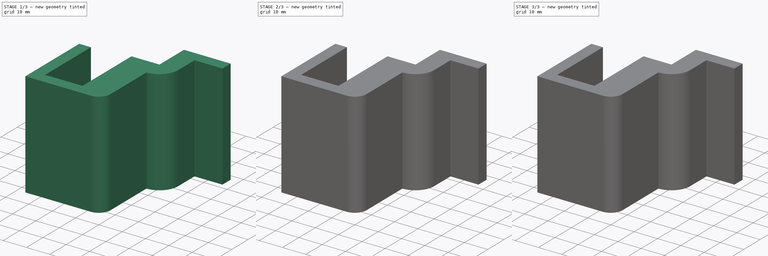
[diagram: build sequence overview — one tinted view per stage of 3, left to right]
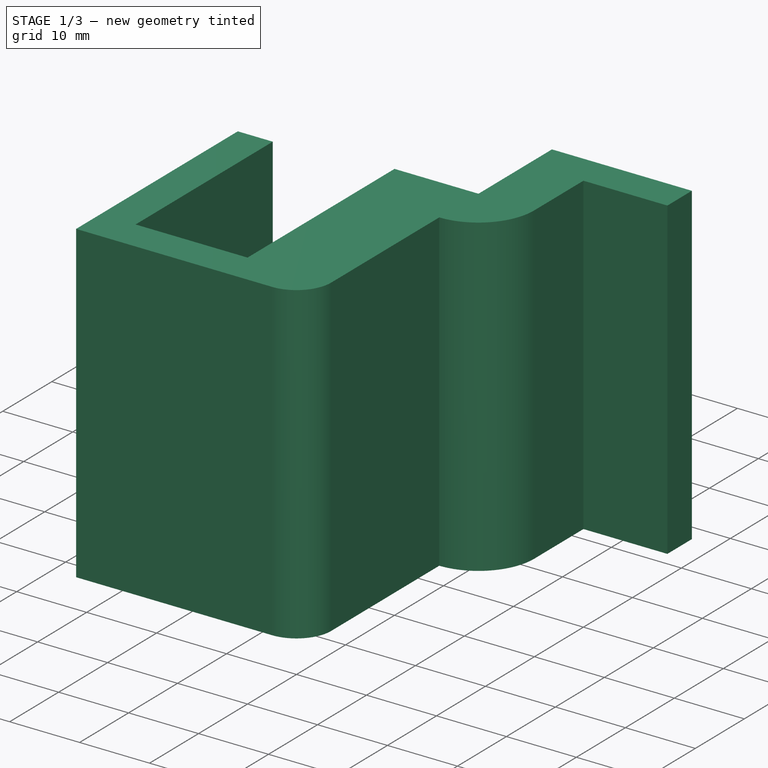
[diagram: stage 1 of 3 — iso view after this stage's code; geometry added in this stage tinted green]
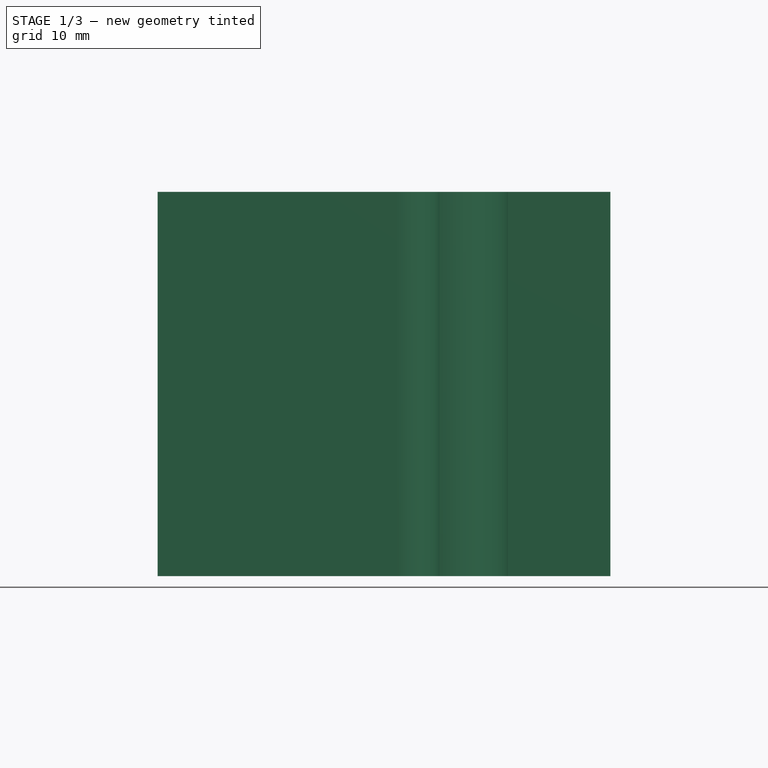
[diagram: stage 1 of 3 — front view after this stage's code; geometry added in this stage tinted green]
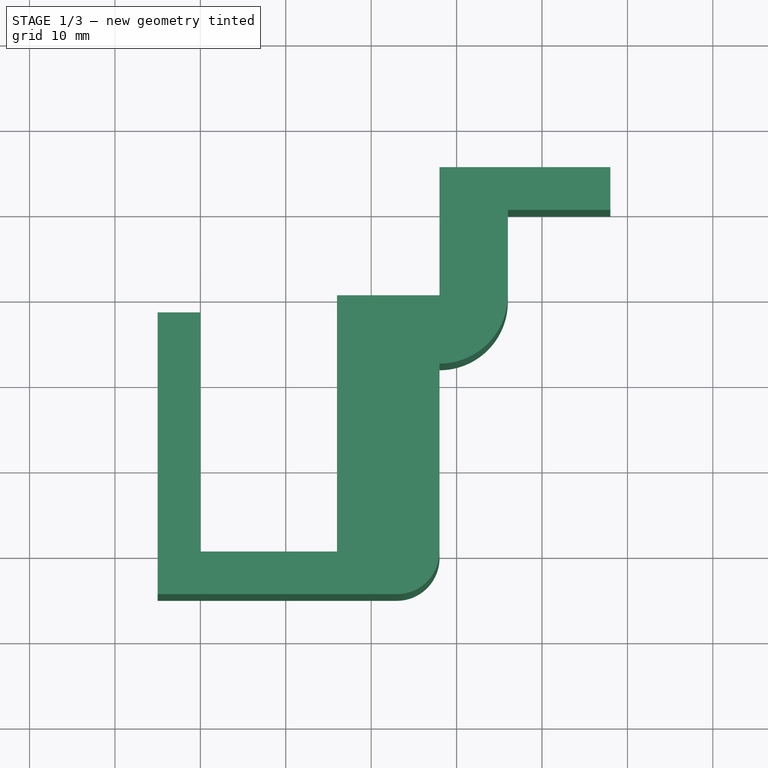
[diagram: stage 1 of 3 — top view after this stage's code; geometry added in this stage tinted green]
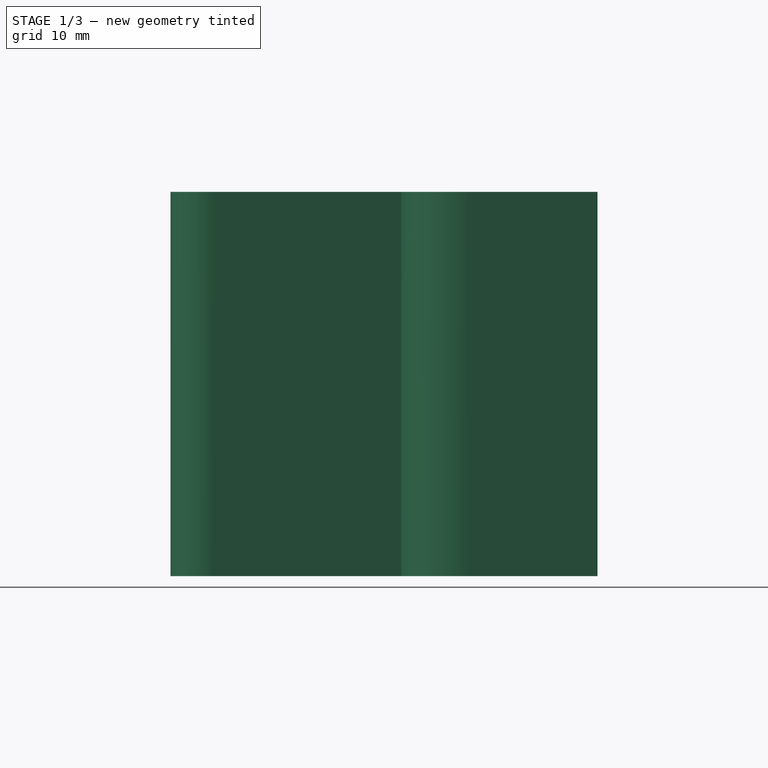
[diagram: stage 1 of 3 — right view after this stage's code; geometry added in this stage tinted green]
FCSTD DOCUMENT  (FreeCAD 0.20R29177 (Git))
Label: tableSupport
License: All rights reserved
LicenseURL: http://en.wikipedia.org/wiki/All_rights_reserved
objects: Sketcher::SketchObject×5, PartDesign::Pocket×3, PartDesign::Body×2, Spreadsheet::Sheet×1, PartDesign::Pad×1, PartDesign::FeatureBase×1, PartDesign::SubtractiveHelix×1
note: 18 computed .brp shape members not serialized (recipe doc carries the construction recipe); baked Part::Feature solids carry a one-line shape summary decoded from their .brp

FEATURE [Sketcher::SketchObject] Sketch
  FullyConstrained = true
  MapMode = 5
  Support = -> [XY_Plane]
  expr: Constraints[10] = Spreadsheet.toTableEdgeDist
  expr: Constraints[11] = Spreadsheet.tableSupportHeight
  expr: Constraints[16] = Spreadsheet.bottomThickness
  expr: Constraints[26] = Spreadsheet.supportXSmall
  expr: Constraints[36] = Spreadsheet.supportX
  expr: Constraints[38] = Spreadsheet.topThickness
  expr: Constraints[39] = Spreadsheet.topHolderWidth
  expr: Constraints[40] = Spreadsheet.tableSupportHeight - Spreadsheet.topThickness
  expr: Constraints[42] = Spreadsheet.bottomThickness
  expr: Constraints[43] = Spreadsheet.bottomThickness
  expr: Constraints[8] = Spreadsheet.bottomHolderWidth
  expr: Constraints[9] = Spreadsheet.bottomBarHeight
  sketch-geometry (16):
    g0: LineSegment StartX=0 StartY=0 StartZ=0 EndX=16 EndY=0 EndZ=0
    g1: LineSegment StartX=16 StartY=0 StartZ=0 EndX=16 EndY=30 EndZ=0
    g2: LineSegment StartX=16 StartY=30 StartZ=0 EndX=28 EndY=30 EndZ=0
    g3: LineSegment StartX=28 StartY=30 StartZ=0 EndX=28 EndY=45 EndZ=0
    g4: LineSegment StartX=28 StartY=45 StartZ=0 EndX=48 EndY=45 EndZ=0
    g5: LineSegment StartX=36 StartY=40 StartZ=0 EndX=36 EndY=30 EndZ=0
    g6: LineSegment StartX=23 StartY=-5 StartZ=0 EndX=0 EndY=-5 EndZ=0
    g7: LineSegment StartX=0 StartY=0 StartZ=0 EndX=0 EndY=28 EndZ=0
    g8: LineSegment StartX=0 StartY=28 StartZ=0 EndX=-5 EndY=28 EndZ=0
    g9: LineSegment StartX=-5 StartY=28 StartZ=0 EndX=-5 EndY=-5 EndZ=0
    g10: LineSegment StartX=0 StartY=-5 StartZ=0 EndX=-5 EndY=-5 EndZ=0
    g11: ArcOfCircle CenterX=28 CenterY=30 CenterZ=0 NormalX=0 NormalY=0 NormalZ=1 AngleXU=0 Radius=8 StartAngle=4.71239 EndAngle=6.28319
    g12: LineSegment StartX=28 StartY=22 StartZ=0 EndX=28 EndY=2.20596e-05 EndZ=0
    g13: LineSegment StartX=48 StartY=45 StartZ=0 EndX=48 EndY=40 EndZ=0
    g14: LineSegment StartX=48 StartY=40 StartZ=0 EndX=36 EndY=40 EndZ=0
    g15: ArcOfCircle CenterX=23 CenterY=0 CenterZ=0 NormalX=0 NormalY=0 NormalZ=1 AngleXU=0 Radius=5 StartAngle=4.71239 EndAngle=6.28319
  constraints (48):
    c: Coincident(g0,g-1)
    c: PointOnObject(g0,g-1)
    c: Coincident(g1,g0)
    c: Vertical(g1)
    c: Coincident(g2,g1)
    c: Horizontal(g2)
    c: Coincident(g3,g2)
    c: Vertical(g3)
    c: DistanceX(g0,g0) = 16
    c: DistanceY(g1,g1) = 30
    c: DistanceX(g2,g2) = 12
    c: DistanceY(g3,g3) = 15
    c: Coincident(g4,g3)
    c: Horizontal(g4)
    c: Vertical(g5)
    c: PointOnObject(g6,g-2)
    c: DistanceY(g6,g0) = 5
    c: Coincident(g7,g0)
    c: PointOnObject(g7,g-2)
    c: Coincident(g8,g7)
    c: Horizontal(g8)
    c: Coincident(g9,g8)
    c: Vertical(g9)
    c: Coincident(g10,g6)
    c: Horizontal(g10)
    c: Coincident(g10,g9)
    c: DistanceX(g10,g10) = 5
    c: DistanceY(g7,g7) = 28
    c: Coincident(g11,g2)
    c: Coincident(g12,g11)
    c: DistanceX(g2,g11) = 0
    c: Coincident(g5,g11)
    c: Vertical(g13)
    c: Coincident(g14,g13)
    c: Horizontal(g14)
    c: Coincident(g5,g14)
    c: Radius(g11) = 8
    c: Coincident(g4,g13)
    c: DistanceY(g13,g13) = 5
    c: DistanceX(g14,g14) = 12
    c: DistanceY(g5,g5) = 10
    c: PointOnObject(g15,g-1)
    c: Radius(g15) = 5
    c: DistanceX(g15,g2) = 5
    c: Coincident(g15,g12)
    c: Coincident(g15,g6)
    c: Horizontal(g6)
    c: Vertical(g12)
FEATURE [Spreadsheet::Sheet] Spreadsheet
  cells = A2=bottomHolderWidth; B2(bottomHolderWidth)=16; A4=toTableEdgeDist; B4(toTableEdgeDist)=12; A5=tableSupportHeight; B5(tableSupportHeight)=15; A6=supportX; B6(supportX)=8; A8=thickness; B8(thickness)=45; A9=bottomBarHeight; B9(bottomBarHeight)=30; A10=supportXSmall; B10(supportXSmall)=5; A11=holeR; B11(holeR)=3; A12=bottomThickness; B12(bottomThickness)=5; A13=topThickness; B13(topThickness)=5; A14=topHolderWidth; B14(topHolderWidth)=12; A15=topHolderCenter; B15(topHolderCenter)==B2 + B4 + B6 + B14 / 2
FEATURE [PartDesign::Pad] Pad
  Direction = (0,0,1)
  Length = 45
  Length2 = 10
  Profile = -> Sketch
  ReferenceAxis = -> Sketch [N_Axis]
  Type = 0
  expr: Length = Spreadsheet.thickness
FEATURE [PartDesign::Body] Body
  Group = -> [Sketch,Pad,Sketch001,Pocket,Sketch002,Pocket001]
  Origin = -> Origin
  Tip = -> Pocket001
FEATURE [PartDesign::FeatureBase] Clone
  BaseFeature = -> Pad
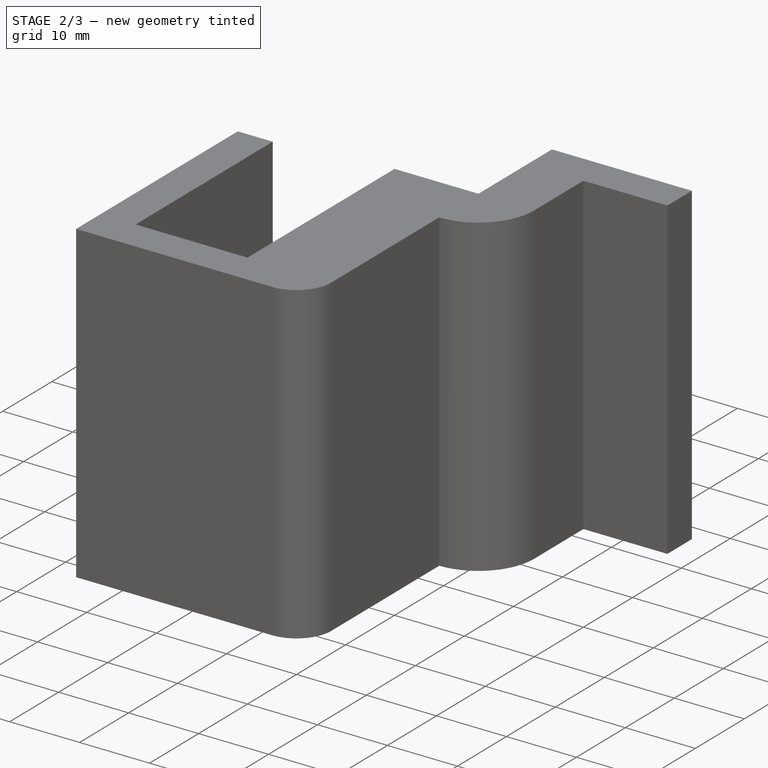
[diagram: stage 2 of 3 — iso view after this stage's code; geometry added in this stage tinted green]
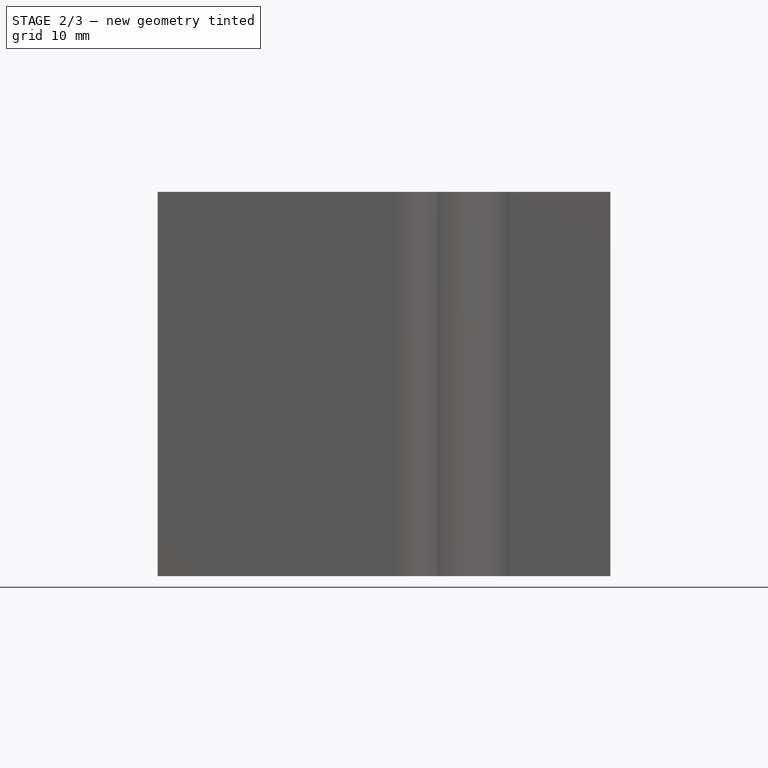
[diagram: stage 2 of 3 — front view after this stage's code; geometry added in this stage tinted green]
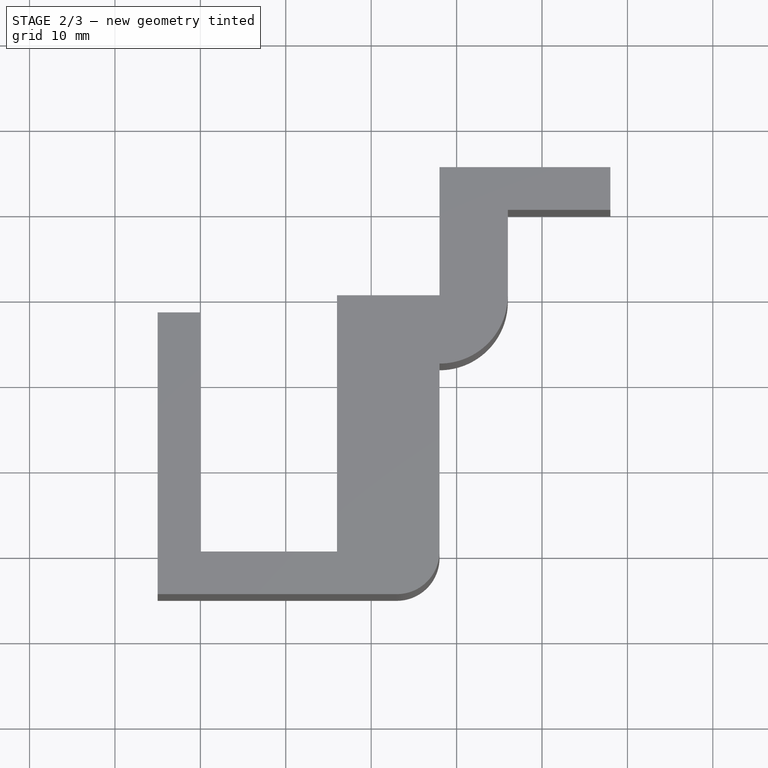
[diagram: stage 2 of 3 — top view after this stage's code; geometry added in this stage tinted green]
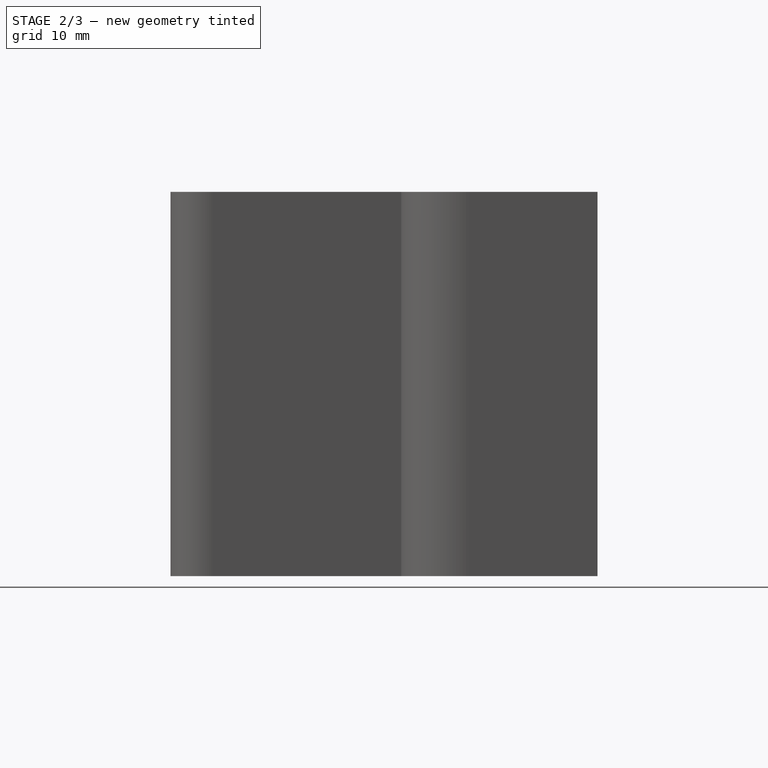
[diagram: stage 2 of 3 — right view after this stage's code; geometry added in this stage tinted green]
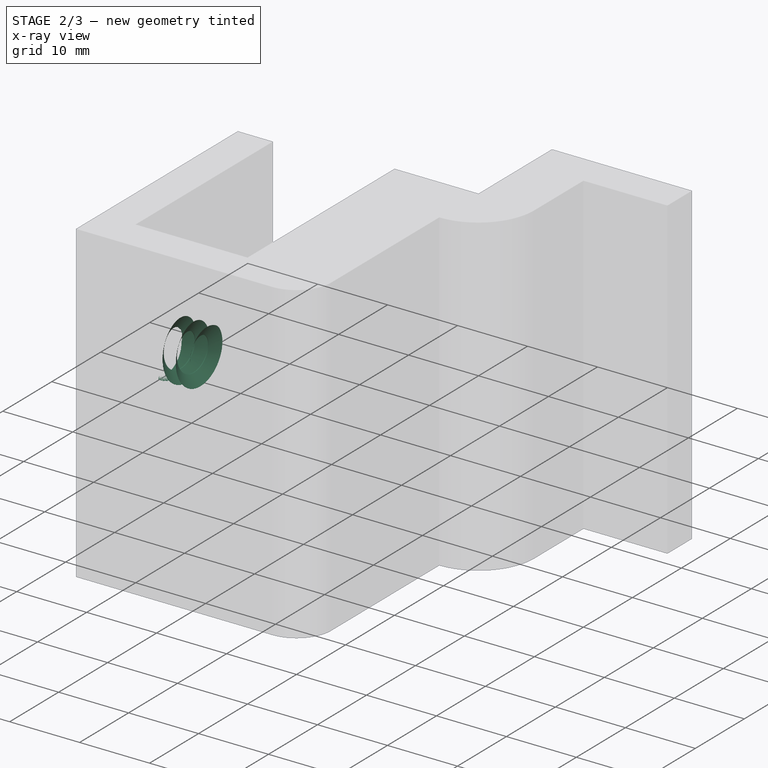
[diagram: stage 2 of 3 — x-ray composite at the iso view; earlier geometry ghosted, this stage's added geometry solid]
FEATURE [Sketcher::SketchObject] Sketch003
  ExternalGeometry = -> [Clone]
  FullyConstrained = true
  MapMode = 5
  Placement = pos=(-5,0,0) rot=(0.57735,-0.57735,-0.57735;2.0944rad)
  Support = -> [Clone]
  sketch-geometry (3):
    g0: LineSegment StartX=-28 StartY=22.5 StartZ=0 EndX=-14 EndY=22.5 EndZ=0
    g1: LineSegment StartX=-14 StartY=22.5 StartZ=0 EndX=-14 EndY=0 EndZ=0
    g2: Circle CenterX=-14 CenterY=22.5 CenterZ=0 NormalX=0 NormalY=0 NormalZ=1 AngleXU=0 Radius=2.5
  constraints (7):
    c: Horizontal(g0)
    c: Vertical(g1)
    c: Symmetric(g-1,g-4,g1)
    c: Symmetric(g-4,g-4,g0)
    c: Coincident(g1,g0)
    c: Radius(g2) = 2.5
    c: Coincident(g2,g0)
FEATURE [Sketcher::SketchObject] SketchTemp_Sketch003_Edge2
  AttachmentOffset = pos=(-14,22.5,0) rot=(1,0,0;1.5708rad)
  FullyConstrained = true
  MapMode = 5
  Placement = pos=(-5,14,22.5) rot=(0.707107,-0.707107,0;3.14159rad)
  Support = -> [Clone]
  sketch-geometry (3):
    g0: LineSegment StartX=2.5 StartY=0.9 StartZ=0 EndX=4.05885 EndY=0 EndZ=0
    g1: LineSegment StartX=4.05885 StartY=0 StartZ=0 EndX=2.5 EndY=-0.9 EndZ=0
    g2: LineSegment StartX=2.5 StartY=-0.9 StartZ=0 EndX=2.5 EndY=0.9 EndZ=0
  constraints (9):
    c: Equal(g2,g0)
    c: Equal(g2,g1)
    c: Distance(g2) = 1.8
    c: Coincident(g0,g1)
    c: Coincident(g1,g2)
    c: Coincident(g2,g0)
    c: Parallel(g2,g-2)
    c: PointOnObject(g0,g-1)
    c: DistanceX(g-1,g0) = 2.5
FEATURE [PartDesign::SubtractiveHelix] SubtractiveHelix
  Angle = 0
  Axis = (-1,0,0)
  Base = (-5,14,22.5)
  BaseFeature = -> Clone
  Growth = 0
  HasBeenEdited = false
  Height = 6
  LeftHanded = false
  Mode = 0
  Outside = false
  Pitch = 1.9
  Profile = -> SketchTemp_Sketch003_Edge2
  ReferenceAxis = -> SketchTemp_Sketch003_Edge2 [V_Axis]
  Reversed = true
  Turns = 3.15789
FEATURE [PartDesign::Pocket] Pocket002
  BaseFeature = -> SubtractiveHelix
  Direction = (1,0,0)
  Length = 5
  Length2 = 5
  Profile = -> Sketch003
  ReferenceAxis = -> Sketch003 [N_Axis]
  Type = 2
FEATURE [PartDesign::Body] Body001
  Group = -> [Clone,Sketch003,SketchTemp_Sketch003_Edge2,SubtractiveHelix,Pocket002]
  Origin = -> Origin001
  Tip = -> Pocket002
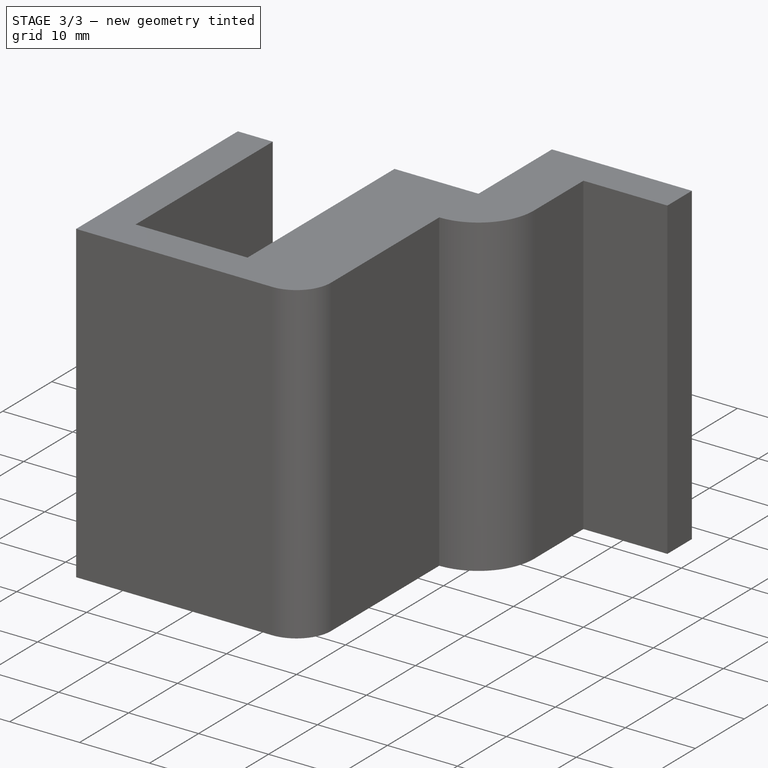
[diagram: stage 3 of 3 — iso view after this stage's code; geometry added in this stage tinted green]
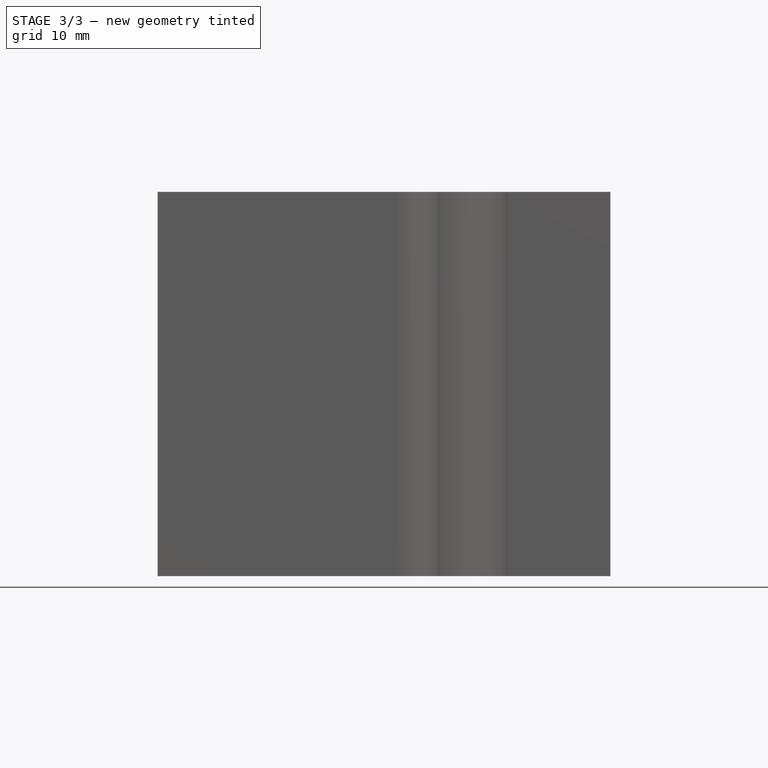
[diagram: stage 3 of 3 — front view after this stage's code; geometry added in this stage tinted green]
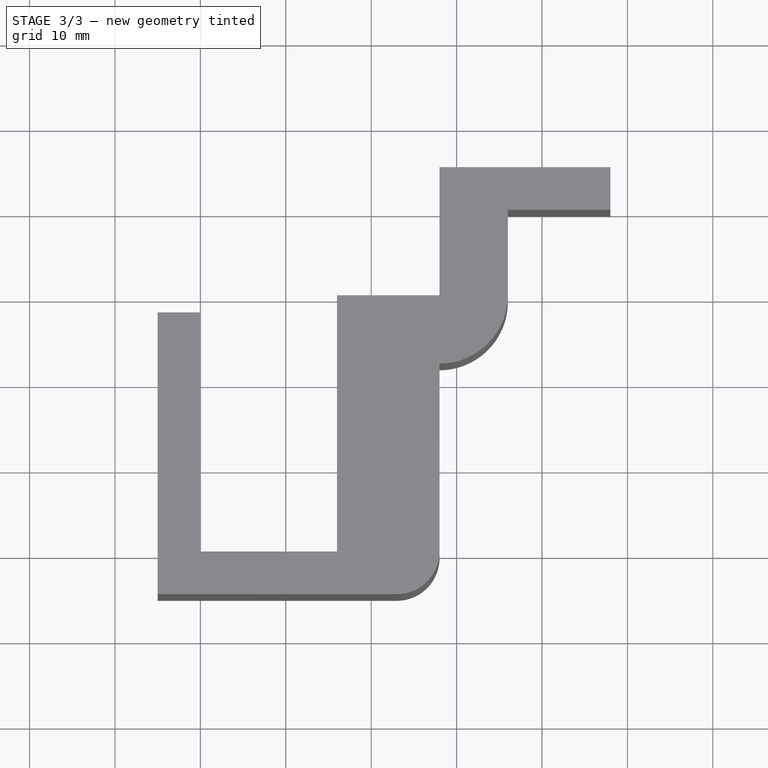
[diagram: stage 3 of 3 — top view after this stage's code; geometry added in this stage tinted green]
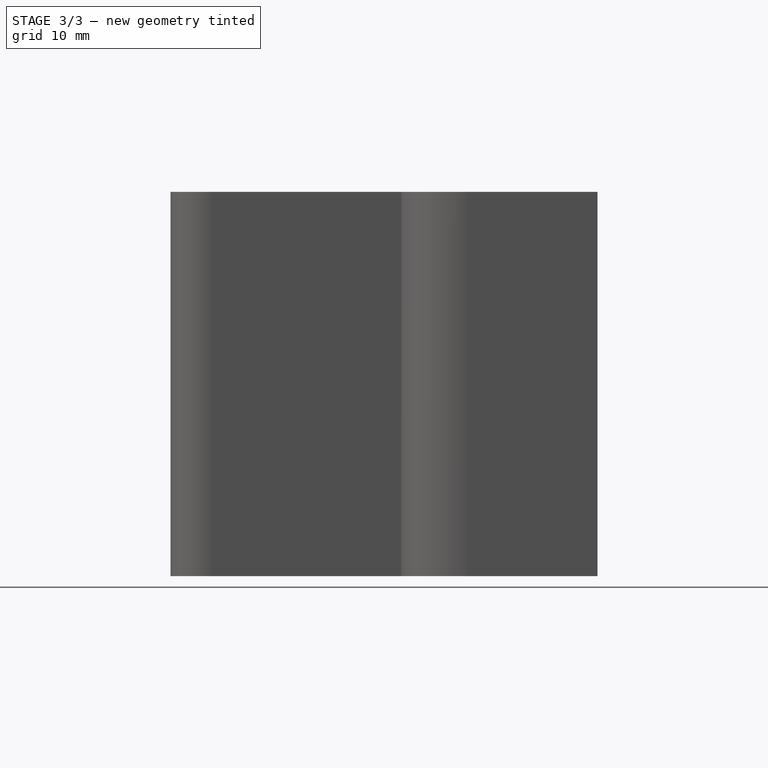
[diagram: stage 3 of 3 — right view after this stage's code; geometry added in this stage tinted green]
FEATURE [Sketcher::SketchObject] Sketch001
  FullyConstrained = true
  MapMode = 5
  Placement = pos=(0,0,0) rot=(1,0,0;1.5708rad)
  Support = -> [XZ_Plane]
  expr: Constraints[2] = Spreadsheet.bottomHolderWidth / 2
  expr: Constraints[5] = Spreadsheet.thickness / 2
  expr: Constraints[7] = Spreadsheet.holeR
  sketch-geometry (3):
    g0: LineSegment StartX=0 StartY=0 StartZ=0 EndX=8 EndY=0 EndZ=0
    g1: LineSegment StartX=8 StartY=0 StartZ=0 EndX=8 EndY=22.5 EndZ=0
    g2: Circle CenterX=8 CenterY=22.5 CenterZ=0 NormalX=0 NormalY=0 NormalZ=1 AngleXU=0 Radius=3
  constraints (8):
    c: Coincident(g0,g-1)
    c: PointOnObject(g0,g-1)
    c: DistanceX(g0,g0) = 8
    c: Coincident(g1,g0)
    c: Vertical(g1)
    c: DistanceY(g1,g1) = 22.5
    c: Coincident(g2,g1)
    c: Radius(g2) = 3
FEATURE [PartDesign::Pocket] Pocket
  BaseFeature = -> Pad
  Direction = (0,1,2e-16)
  Length = 15
  Length2 = 5
  Profile = -> Sketch001
  ReferenceAxis = -> Sketch001 [N_Axis]
  Reversed = true
  Type = 2
  expr: Length = 15mm
FEATURE [Sketcher::SketchObject] Sketch002
  FullyConstrained = true
  MapMode = 5
  Placement = pos=(0,0,0) rot=(1,0,0;1.5708rad)
  Support = -> [XZ_Plane]
  expr: Constraints[1] = Spreadsheet.thickness / 2
  expr: Constraints[2] = Spreadsheet.topHolderCenter
  sketch-geometry (1):
    g0: Circle CenterX=42 CenterY=22.5 CenterZ=0 NormalX=0 NormalY=0 NormalZ=1 AngleXU=0 Radius=1.9
  constraints (3):
    c: Radius(g0) = 1.9
    c: DistanceY(g-1,g0) = 22.5
    c: DistanceX(g-1,g0) = 42
FEATURE [PartDesign::Pocket] Pocket001  label="Pocket001WithHoleFinished"
  BaseFeature = -> Pocket
  Direction = (0,1,2e-16)
  Length = 5
  Length2 = 5
  Profile = -> Sketch002
  ReferenceAxis = -> Sketch002 [N_Axis]
  Type = 1
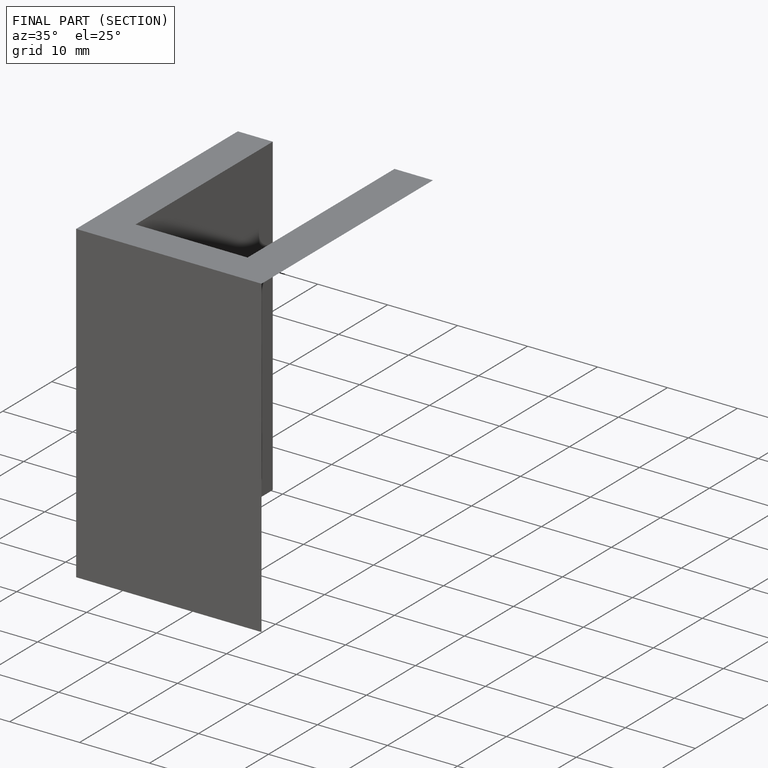
[diagram: finished part — half-section view (interior)]
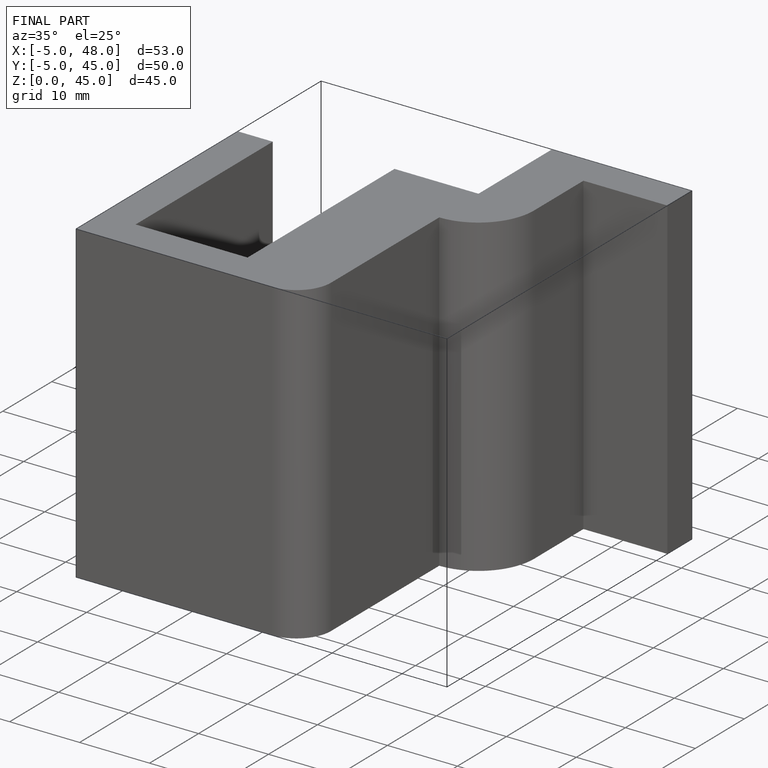
[diagram: finished part — iso view with bounding-box wireframe]
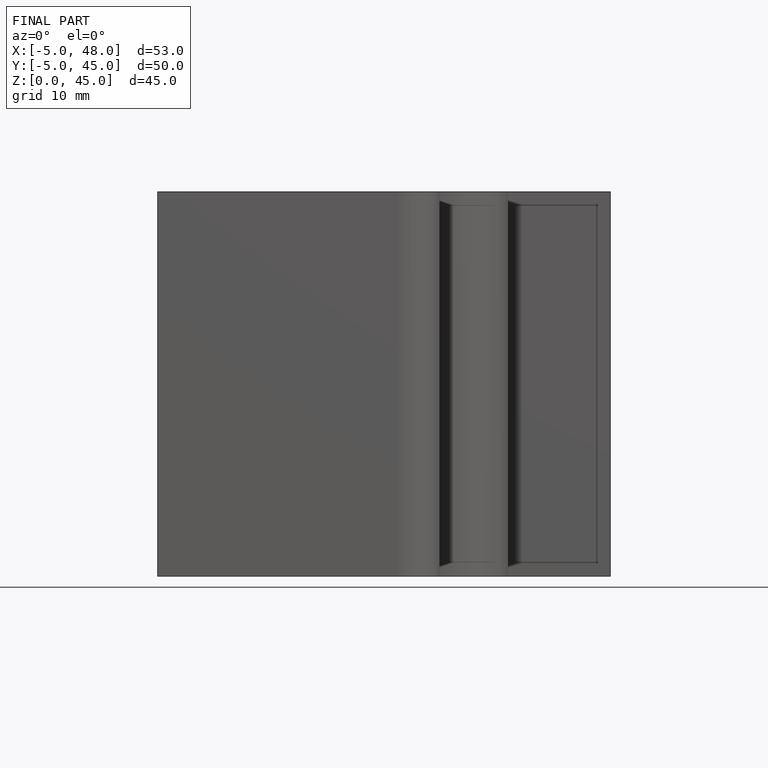
[diagram: finished part — front view with bounding-box wireframe]
